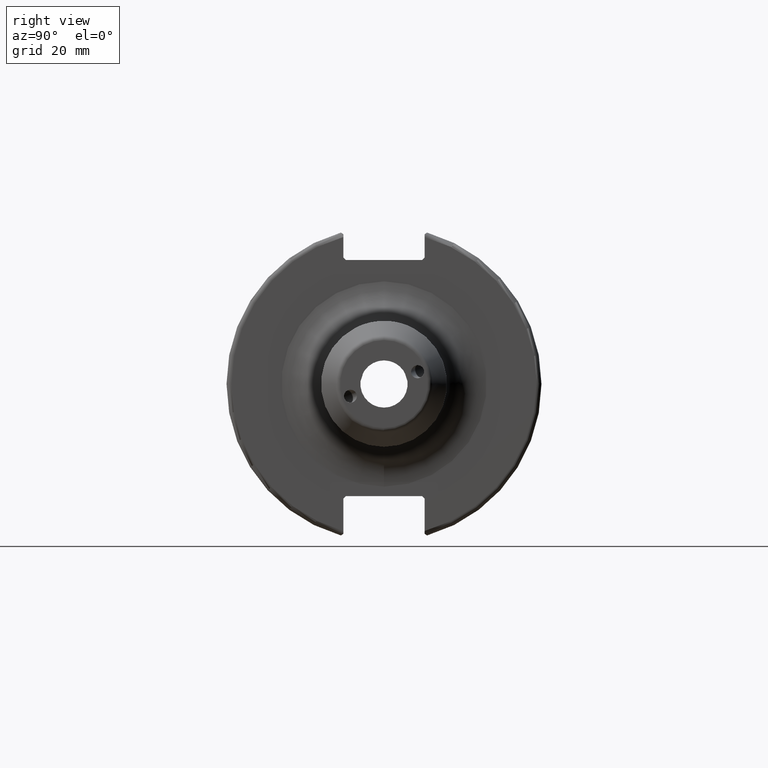
[diagram: clean part render]
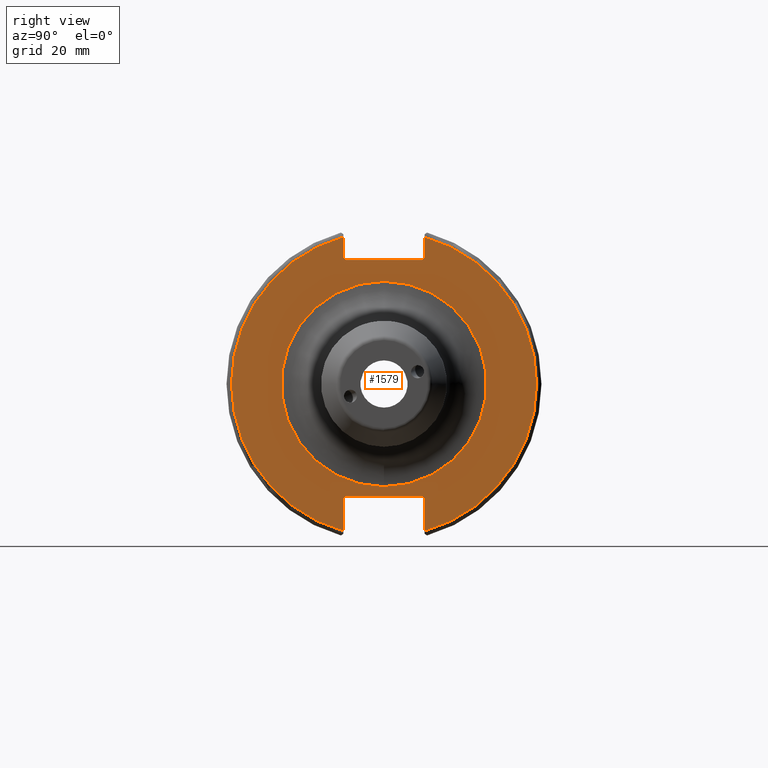
[diagram: same view with one face highlighted and labeled with its STEP entity id]
A machine part, right view. The second image highlights one B-rep face of the part: STEP entity #1579.
In plain terms, the highlighted planar face has unit normal (1, 0, 0).
Its self-contained STEP definition (entity closure, byte-faithful):
#59=FACE_BOUND('',#290,.T.);
#74=PLANE('',#1711);
#125=CIRCLE('',#1710,20.7);
#126=CIRCLE('',#1712,30.75);
#127=CIRCLE('',#1713,30.75);
#195=FACE_OUTER_BOUND('',#289,.T.);
#289=EDGE_LOOP('',(#1119,#1120,#1121,#1122,#1123,#1124,#1125,#1126,#1127,
#1128,#1129,#1130));
#290=EDGE_LOOP('',(#1131));
#428=LINE('',#2670,#525);
#429=LINE('',#2672,#526);
#430=LINE('',#2674,#527);
#431=LINE('',#2676,#528);
#432=LINE('',#2678,#529);
#433=LINE('',#2682,#530);
#434=LINE('',#2684,#531);
#435=LINE('',#2686,#532);
#436=LINE('',#2688,#533);
#437=LINE('',#2689,#534);
#525=VECTOR('',#1943,10.);
#526=VECTOR('',#1944,10.);
#527=VECTOR('',#1945,10.);
#528=VECTOR('',#1946,10.);
#529=VECTOR('',#1947,10.);
#530=VECTOR('',#1950,10.);
#531=VECTOR('',#1951,10.);
#532=VECTOR('',#1952,10.);
#533=VECTOR('',#1953,10.);
#534=VECTOR('',#1954,10.);
#661=VERTEX_POINT('',#2662);
#662=VERTEX_POINT('',#2666);
#663=VERTEX_POINT('',#2667);
#664=VERTEX_POINT('',#2669);
#665=VERTEX_POINT('',#2671);
#666=VERTEX_POINT('',#2673);
#667=VERTEX_POINT('',#2675);
#668=VERTEX_POINT('',#2677);
#669=VERTEX_POINT('',#2679);
#670=VERTEX_POINT('',#2681);
#671=VERTEX_POINT('',#2683);
#672=VERTEX_POINT('',#2685);
#673=VERTEX_POINT('',#2687);
#838=EDGE_CURVE('',#661,#661,#125,.T.);
#839=EDGE_CURVE('',#662,#663,#126,.T.);
#840=EDGE_CURVE('',#662,#664,#428,.T.);
#841=EDGE_CURVE('',#665,#664,#429,.T.);
#842=EDGE_CURVE('',#665,#666,#430,.T.);
#843=EDGE_CURVE('',#667,#666,#431,.T.);
#844=EDGE_CURVE('',#667,#668,#432,.T.);
#845=EDGE_CURVE('',#669,#668,#127,.T.);
#846=EDGE_CURVE('',#669,#670,#433,.T.);
#847=EDGE_CURVE('',#671,#670,#434,.T.);
#848=EDGE_CURVE('',#671,#672,#435,.T.);
#849=EDGE_CURVE('',#673,#672,#436,.T.);
#850=EDGE_CURVE('',#673,#663,#437,.T.);
#1119=ORIENTED_EDGE('',*,*,#839,.F.);
#1120=ORIENTED_EDGE('',*,*,#840,.T.);
#1121=ORIENTED_EDGE('',*,*,#841,.F.);
#1122=ORIENTED_EDGE('',*,*,#842,.T.);
#1123=ORIENTED_EDGE('',*,*,#843,.F.);
#1124=ORIENTED_EDGE('',*,*,#844,.T.);
#1125=ORIENTED_EDGE('',*,*,#845,.F.);
#1126=ORIENTED_EDGE('',*,*,#846,.T.);
#1127=ORIENTED_EDGE('',*,*,#847,.F.);
#1128=ORIENTED_EDGE('',*,*,#848,.T.);
#1129=ORIENTED_EDGE('',*,*,#849,.F.);
#1130=ORIENTED_EDGE('',*,*,#850,.T.);
#1131=ORIENTED_EDGE('',*,*,#838,.F.);
#1579=ADVANCED_FACE('',(#195,#59),#74,.T.);
#1710=AXIS2_PLACEMENT_3D('',#2664,#1937,#1938);
#1711=AXIS2_PLACEMENT_3D('',#2665,#1939,#1940);
#1712=AXIS2_PLACEMENT_3D('',#2668,#1941,#1942);
#1713=AXIS2_PLACEMENT_3D('',#2680,#1948,#1949);
#1937=DIRECTION('center_axis',(1.,0.,0.));
#1938=DIRECTION('ref_axis',(0.,1.22464679914735E-16,-1.));
#1939=DIRECTION('center_axis',(1.,0.,0.));
#1940=DIRECTION('ref_axis',(0.,0.,-1.));
#1941=DIRECTION('center_axis',(-1.,0.,0.));
#1942=DIRECTION('ref_axis',(0.,1.,-6.12323399573677E-17));
#1943=DIRECTION('',(0.,0.,-1.));
#1944=DIRECTION('',(0.,0.707106781186549,0.707106781186546));
#1945=DIRECTION('',(0.,-1.,0.));
#1946=DIRECTION('',(0.,0.70710678118655,-0.707106781186545));
#1947=DIRECTION('',(0.,0.,1.));
#1948=DIRECTION('center_axis',(-1.,0.,0.));
#1949=DIRECTION('ref_axis',(0.,-1.,1.60812264967664E-16));
#1950=DIRECTION('',(0.,0.,1.));
#1951=DIRECTION('',(0.,-0.707106781186549,-0.707106781186546));
#1952=DIRECTION('',(0.,1.,0.));
#1953=DIRECTION('',(0.,-0.707106781186549,0.707106781186546));
#1954=DIRECTION('',(0.,0.,-1.));
#2662=CARTESIAN_POINT('',(19.05,-2.53501887423502E-15,-20.7));
#2664=CARTESIAN_POINT('Origin',(19.05,0.,0.));
#2665=CARTESIAN_POINT('Origin',(19.05,0.,0.));
#2666=CARTESIAN_POINT('',(19.05,8.19,29.6392712461019));
#2667=CARTESIAN_POINT('',(19.05,8.19,-29.6392712461019));
#2668=CARTESIAN_POINT('Origin',(19.05,0.,0.));
#2669=CARTESIAN_POINT('',(19.05,8.19,25.5));
#2670=CARTESIAN_POINT('',(19.05,8.19,12.5));
#2671=CARTESIAN_POINT('',(19.05,7.69,25.));
#2672=CARTESIAN_POINT('',(19.05,-0.35750000000001,16.9525));
#2673=CARTESIAN_POINT('',(19.05,-7.69,25.));
#2674=CARTESIAN_POINT('',(19.05,0.,25.));
#2675=CARTESIAN_POINT('',(19.05,-8.19,25.5));
#2676=CARTESIAN_POINT('',(19.05,0.357500000000014,16.9525));
#2677=CARTESIAN_POINT('',(19.05,-8.19,29.6392712461019));
#2678=CARTESIAN_POINT('',(19.05,-8.19,12.5));
#2679=CARTESIAN_POINT('',(19.05,-8.19,-29.6392712461019));
#2680=CARTESIAN_POINT('Origin',(19.05,0.,0.));
#2681=CARTESIAN_POINT('',(19.05,-8.19,-23.1));
#2682=CARTESIAN_POINT('',(19.05,-8.19,-11.3));
#2683=CARTESIAN_POINT('',(19.05,-7.69,-22.6));
#2684=CARTESIAN_POINT('',(19.05,-0.242499999999991,-15.1525));
#2685=CARTESIAN_POINT('',(19.05,7.69,-22.6));
#2686=CARTESIAN_POINT('',(19.05,-2.77555756156289E-16,-22.6));
#2687=CARTESIAN_POINT('',(19.05,8.19,-23.1));
#2688=CARTESIAN_POINT('',(19.05,0.242499999999989,-15.1525));
#2689=CARTESIAN_POINT('',(19.05,8.19,-11.3));